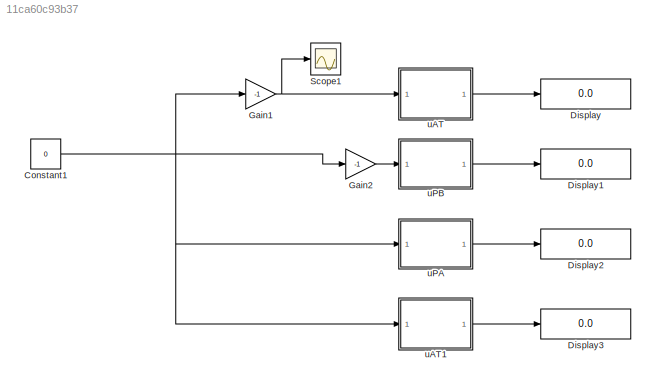
MODEL slx_11ca60c93b37
KIND model
CONFIG AbsTol = auto
CONFIG EnableMultiTasking = off
CONFIG FixedStep = auto
CONFIG MaxStep = auto
CONFIG MinStep = auto
CONFIG RelTol = 1e-3
CONFIG SampleTimeConstraint = Unconstrained
CONFIG SolverName = VariableStepAuto
CONFIG StartTime = 0.0
CONFIG StopTime = 11.5
BLOCK [Constant] Constant1
  Value = 0
BLOCK [Display] Display
  Decimation = 1
BLOCK [Display] Display1
  Decimation = 1
BLOCK [Display] Display2
  Decimation = 1
BLOCK [Display] Display3
  Decimation = 1
BLOCK [Gain] Gain1
  Gain = -1
BLOCK [Gain] Gain2
  Gain = -1
BLOCK [Scope] Scope1
  Floating = off
  NumInputPorts = 1
  ScopeSpecificationString = Simulink.scopes.TimeScopeBlockCfg('CurrentConfiguration', extmgr.ConfigurationSet(extmgr.Configuration('Core','General UI',true),extmgr.Configuration('Core','Source UI',true),extmgr.Configuration('Sources','WiredSimulink',true,'DataLoggingVariableName','ScopeData2'),extmgr.Configuration('Visuals','Time Domain',true,'SerializedDisplays',{struct('MinYLimReal','-1.375','MaxYLimReal','2.375','YLabelRe...<+1501ch>
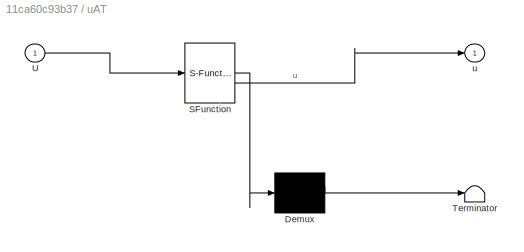
BLOCK [SubSystem] uAT
  ErrorFcn = Stateflow.Translate.translate
  PermitHierarchicalResolution = ExplicitOnly
  SFBlockType = MATLAB Function
  TreatAsAtomicUnit = on
BLOCK [Demux] uAT/ Demux 
  Outputs = 1
BLOCK [S-Function] uAT/ SFunction 
  EnableBusSupport = on
  FunctionName = sf_sfun
  PortCounts = [1 2]
  SFcnIsStateOwnerBlock = off
  SFunctionDeploymentMode = off
  Tag = Stateflow S-Function 5
BLOCK [Terminator] uAT/ Terminator 
BLOCK [Inport] uAT/U
BLOCK [Outport] uAT/u
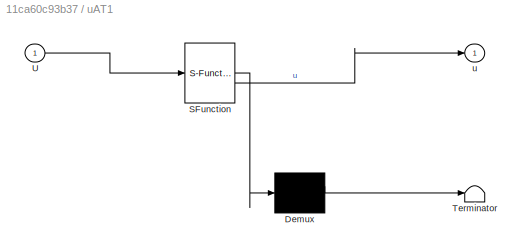
BLOCK [SubSystem] uAT1
  ErrorFcn = Stateflow.Translate.translate
  PermitHierarchicalResolution = ExplicitOnly
  SFBlockType = MATLAB Function
  TreatAsAtomicUnit = on
BLOCK [Demux] uAT1/ Demux 
  Outputs = 1
BLOCK [S-Function] uAT1/ SFunction 
  EnableBusSupport = on
  FunctionName = sf_sfun
  PortCounts = [1 2]
  SFcnIsStateOwnerBlock = off
  SFunctionDeploymentMode = off
  Tag = Stateflow S-Function 2
BLOCK [Terminator] uAT1/ Terminator 
BLOCK [Inport] uAT1/U
BLOCK [Outport] uAT1/u
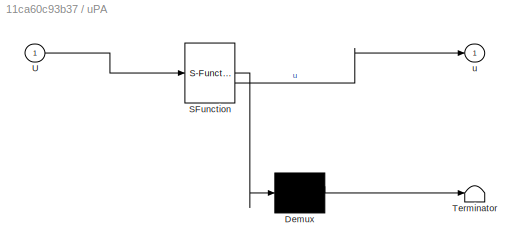
BLOCK [SubSystem] uPA
  ErrorFcn = Stateflow.Translate.translate
  PermitHierarchicalResolution = ExplicitOnly
  SFBlockType = MATLAB Function
  TreatAsAtomicUnit = on
BLOCK [Demux] uPA/ Demux 
  Outputs = 1
BLOCK [S-Function] uPA/ SFunction 
  EnableBusSupport = on
  FunctionName = sf_sfun
  PortCounts = [1 2]
  SFcnIsStateOwnerBlock = off
  SFunctionDeploymentMode = off
  Tag = Stateflow S-Function 1
BLOCK [Terminator] uPA/ Terminator 
BLOCK [Inport] uPA/U
BLOCK [Outport] uPA/u
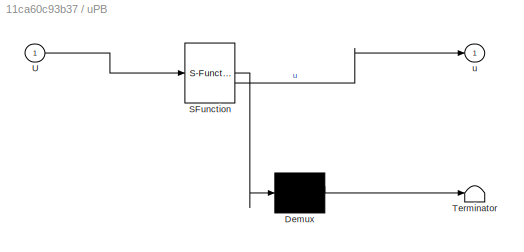
BLOCK [SubSystem] uPB
  ErrorFcn = Stateflow.Translate.translate
  PermitHierarchicalResolution = ExplicitOnly
  SFBlockType = MATLAB Function
  TreatAsAtomicUnit = on
BLOCK [Demux] uPB/ Demux 
  Outputs = 1
BLOCK [S-Function] uPB/ SFunction 
  EnableBusSupport = on
  FunctionName = sf_sfun
  PortCounts = [1 2]
  SFcnIsStateOwnerBlock = off
  SFunctionDeploymentMode = off
  Tag = Stateflow S-Function 3
BLOCK [Terminator] uPB/ Terminator 
BLOCK [Inport] uPB/U
BLOCK [Outport] uPB/u
NET Constant1:1 -> Gain1:1, Gain2:1, uAT1:1, uPA:1
NET Gain1:1 -> Scope1:1, uAT:1
LINE Gain2:1 -> uPB:1
LINE uAT1:1 -> Display3:1
LINE uAT:1 -> Display:1
LINE uPA:1 -> Display2:1
LINE uPB:1 -> Display1:1
note: NET lines group one-source signal fan-out (src -> all destinations, sorted); 1:1 wires keep LINE
CHART uAT1 states=1 transitions=1
  STATE_LABEL 'eML_blk_kernel()'
  STATE_LABEL 'SCRIPT:\nfunction u = fcn(U)\nif U < -0.13\n    u=0;\nelseif U <= 0\n    u = 0.14-abs(U);\nelseif U <= 0.14\n    u = 0.14;\nelseif U >0.14\n    u= (U-0.14)/(1-0.14)+0.14;\nelse\n    u = 0;\nend\n% u = u+0.15;'
CHART uPB states=1 transitions=1
  STATE_LABEL 'eML_blk_kernel()'
  STATE_LABEL 'SCRIPT:\nfunction u = fcn(U)\nif U < 0.13\n    u = 0;\nelseif U >=0.13\n    u= (U-0.13)/(1-0.13);\nelse\n    u = 0;\nend\n\n\n'
CHART uAT states=1 transitions=1
  STATE_LABEL 'eML_blk_kernel()'
  STATE_LABEL 'SCRIPT:\nfunction u = fcn(U)\nif U < -0.14\n    u=0;\nelseif U <= 0\n    u = 0.13-abs(U);\nelseif U <= 0.13\n    u = 0.13;\nelseif U >0.13\n    u= (U-0.13)/(1-0.13)+0.13;\nelse\n    u = 0;\nend\n% u = u+0.15;'
CHART uPA states=1 transitions=1
  STATE_LABEL 'eML_blk_kernel()'
  STATE_LABEL 'SCRIPT:\nfunction u = fcn(U)\nif U < 0.14\n    u = 0;\nelseif U >=0.14\n    u= (U-0.14)/(1-0.14);\nelse\n    u = 0;\nend\n\n\n'
CHART  states=0 transitions=0
CHART  states=0 transitions=0
CHART  states=0 transitions=0
CHART  states=0 transitions=0
